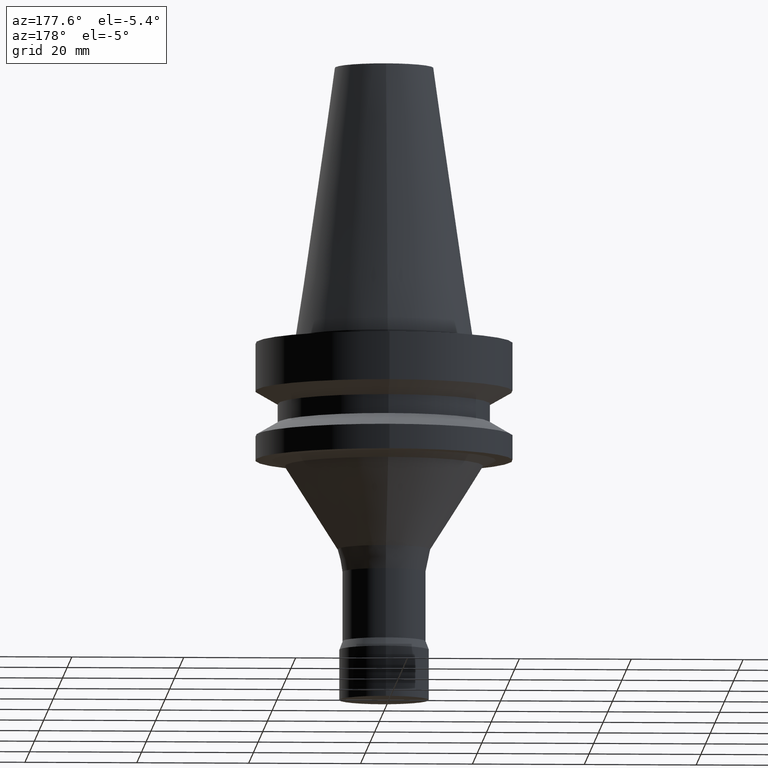
[diagram: clean part render]
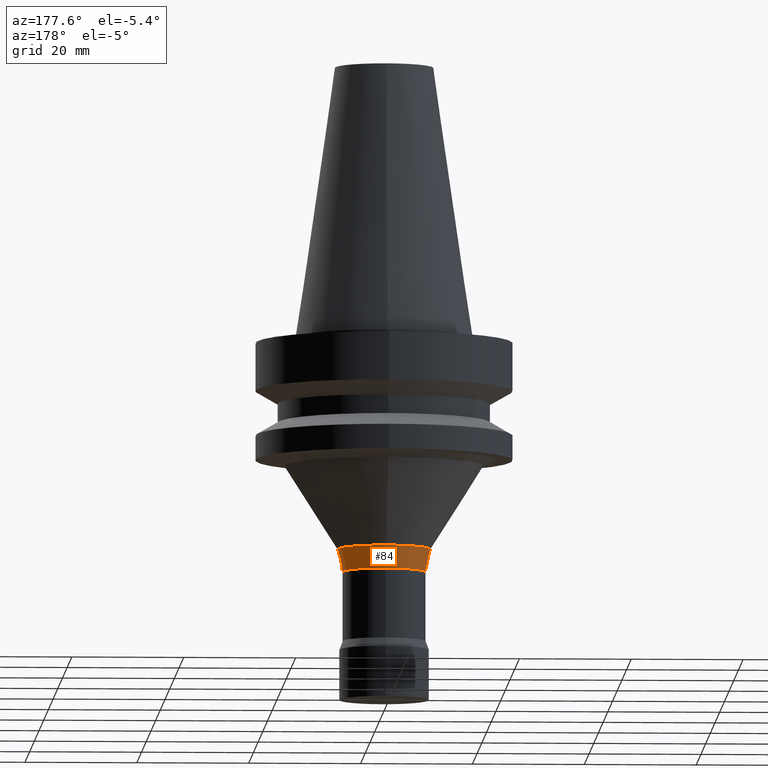
[diagram: same view with one face highlighted and labeled with its STEP entity id]
A machine part, auxiliary view. The second image highlights one B-rep face of the part: STEP entity #84.
In plain terms, the highlighted conical surface has half-angle 11.964 deg.
Its self-contained STEP definition (entity closure, byte-faithful):
#84=ADVANCED_FACE('',(#120,#121),#122,.T.);
#120=FACE_BOUND('',#169,.T.);
#121=FACE_BOUND('',#170,.T.);
#122=CONICAL_SURFACE('',#171,7.85458784166743,0.208814063039879);
#169=EDGE_LOOP('',(#236));
#170=EDGE_LOOP('',(#237));
#171=AXIS2_PLACEMENT_3D('',#238,#239,#240);
#236=ORIENTED_EDGE('',*,*,#284,.F.);
#237=ORIENTED_EDGE('',*,*,#283,.T.);
#238=CARTESIAN_POINT('',(2.44871807159467E-015,4.89743614318934E-015,-39.9906009357076));
#239=DIRECTION('',(-6.12323399573676E-017,-1.22464679914735E-016,1.0));
#240=DIRECTION('',(-1.23259516440783E-032,1.0,1.22464679914735E-016));
#283=EDGE_CURVE('',#308,#308,#309,.T.);
#284=EDGE_CURVE('',#310,#310,#311,.T.);
#308=VERTEX_POINT('',#340);
#309=CIRCLE('',#341,8.28432020333486);
#310=VERTEX_POINT('',#342);
#311=CIRCLE('',#343,7.42485548);
#340=CARTESIAN_POINT('',(2.32454085329338E-015,8.28432020333486,-37.9626330614152));
#341=AXIS2_PLACEMENT_3D('',#381,#382,#383);
#342=CARTESIAN_POINT('',(2.57289528989597E-015,7.42485548,-42.01856881));
#343=AXIS2_PLACEMENT_3D('',#384,#385,#386);
#381=CARTESIAN_POINT('',(2.32454085329338E-015,4.64908170658676E-015,-37.9626330614152));
#382=DIRECTION('',(6.12323399573676E-017,1.22464679914735E-016,-1.0));
#383=DIRECTION('',(-1.23259516440783E-032,1.0,1.22464679914735E-016));
#384=CARTESIAN_POINT('',(2.57289528989597E-015,5.14579057979193E-015,-42.01856881));
#385=DIRECTION('',(6.12323399573677E-017,1.22464679914735E-016,-1.0));
#386=DIRECTION('',(-1.23259516440783E-032,1.0,1.22464679914735E-016));